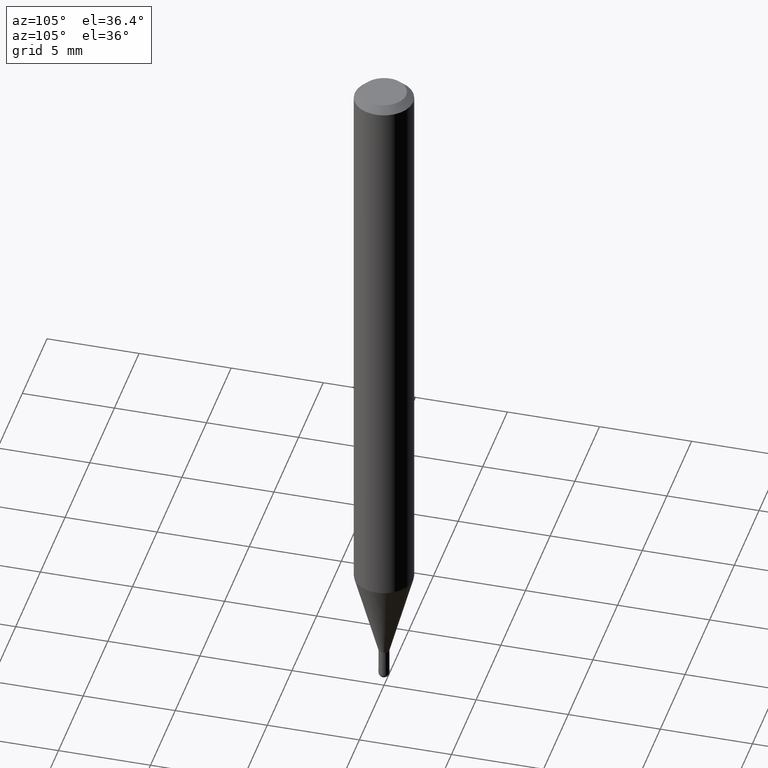
[diagram: clean part render]
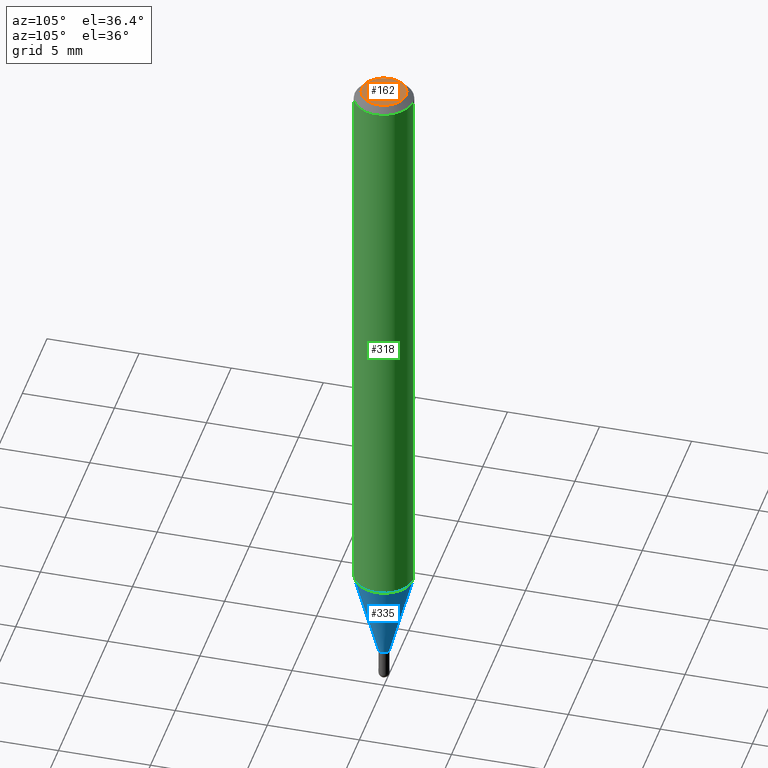
[diagram: same view with three faces highlighted in distinct colors, each labeled with its STEP entity id]
A machine part, auxiliary view with three faces highlighted in distinct colors.
Their STEP definitions:

[orange] entity #162 — the highlighted planar face has unit normal (0, -0, -1).
#27 = PLANE ( 'NONE',  #208 ) ;
#38 = DIRECTION ( 'NONE',  ( 2.445482672155708866E-29, -3.491461481984083655E-15, -1.000000000000000000 ) ) ;
#59 = AXIS2_PLACEMENT_3D ( 'NONE', #220, #70, #219 ) ;
#68 = DIRECTION ( 'NONE',  ( 6.982962677686265922E-15, 1.000000000000000000, -3.491461481984083655E-15 ) ) ;
#70 = DIRECTION ( 'NONE',  ( -2.445482672155709146E-29, 3.491461481984083655E-15, 1.000000000000000000 ) ) ;
#93 = DIRECTION ( 'NONE',  ( -6.982962677686266711E-15, -1.000000000000000000, 3.491461481984083655E-15 ) ) ;
#94 = EDGE_LOOP ( 'NONE', ( #230, #277 ) ) ;
#115 = EDGE_CURVE ( 'NONE', #488, #448, #247, .T. ) ;
#161 = AXIS2_PLACEMENT_3D ( 'NONE', #284, #379, #93 ) ;
#162 = ADVANCED_FACE ( 'NONE', ( #463 ), #27, .F. ) ;
#208 = AXIS2_PLACEMENT_3D ( 'NONE', #424, #38, #68 ) ;
#219 = DIRECTION ( 'NONE',  ( -6.982962677686266711E-15, -1.000000000000000000, 3.491461481984083655E-15 ) ) ;
#220 = CARTESIAN_POINT ( 'NONE',  ( 2.167006461281075159E-46, -3.093875772222917516E-32, -8.861262792636534541E-18 ) ) ;
#230 = ORIENTED_EDGE ( 'NONE', *, *, #115, .T. ) ;
#245 = EDGE_CURVE ( 'NONE', #448, #488, #299, .T. ) ;
#247 = CIRCLE ( 'NONE', #161, 0.04749999999999999362 ) ;
#277 = ORIENTED_EDGE ( 'NONE', *, *, #245, .T. ) ;
#283 = CARTESIAN_POINT ( 'NONE',  ( 3.840629472727447874E-16, 0.04749999999999999362, -1.747056831868805136E-16 ) ) ;
#284 = CARTESIAN_POINT ( 'NONE',  ( 2.167006461281075159E-46, -3.093875772222917516E-32, -8.861262792636534541E-18 ) ) ;
#299 = CIRCLE ( 'NONE', #59, 0.04749999999999999362 ) ;
#379 = DIRECTION ( 'NONE',  ( -2.445482672155709146E-29, 3.491461481984083655E-15, 1.000000000000000000 ) ) ;
#417 = CARTESIAN_POINT ( 'NONE',  ( -3.773273898774340269E-16, -0.04749999999999999362, 1.569831576016074168E-16 ) ) ;
#424 = CARTESIAN_POINT ( 'NONE',  ( 3.316907271900976096E-16, 0.04749999999999999362, -1.702750517905622333E-16 ) ) ;
#448 = VERTEX_POINT ( 'NONE', #417 ) ;
#463 = FACE_OUTER_BOUND ( 'NONE', #94, .T. ) ;
#488 = VERTEX_POINT ( 'NONE', #283 ) ;

[blue] entity #335 — the highlighted conical surface has half-angle 15 deg.
#5 = CARTESIAN_POINT ( 'NONE',  ( -4.364351673553613969E-16, -0.06250000000000432987, -1.240665408813993009 ) ) ;
#12 = ORIENTED_EDGE ( 'NONE', *, *, #239, .T. ) ;
#13 = AXIS2_PLACEMENT_3D ( 'NONE', #427, #430, #390 ) ;
#20 = CARTESIAN_POINT ( 'NONE',  ( 3.034025759197599694E-29, -4.331735486904094553E-15, -1.240665408813993231 ) ) ;
#36 = CIRCLE ( 'NONE', #414, 0.06250000000000000000 ) ;
#52 = ORIENTED_EDGE ( 'NONE', *, *, #199, .F. ) ;
#78 = CONICAL_SURFACE ( 'NONE', #441, 0.01149999999999992521, 0.2617993877991575125 ) ;
#82 = DIRECTION ( 'NONE',  ( -2.445482672155709146E-29, 3.491461481984083655E-15, 1.000000000000000000 ) ) ;
#86 = EDGE_CURVE ( 'NONE', #464, #476, #36, .T. ) ;
#91 = EDGE_LOOP ( 'NONE', ( #12, #439, #380, #52 ) ) ;
#120 = EDGE_CURVE ( 'NONE', #368, #476, #329, .T. ) ;
#140 = DIRECTION ( 'NONE',  ( 1.839019923739649619E-15, 0.2588190451025318972, 0.9659258262890650926 ) ) ;
#152 = VECTOR ( 'NONE', #140, 39.37007874015748854 ) ;
#166 = DIRECTION ( 'NONE',  ( -2.445482672155709146E-29, 3.491461481984083655E-15, 1.000000000000000000 ) ) ;
#182 = LINE ( 'NONE', #185, #308 ) ;
#185 = CARTESIAN_POINT ( 'NONE',  ( -8.030407079335653737E-17, -0.01150000000000492122, -1.431000000000000050 ) ) ;
#199 = EDGE_CURVE ( 'NONE', #274, #464, #182, .T. ) ;
#222 = CIRCLE ( 'NONE', #13, 0.01149999999999992521 ) ;
#225 = CARTESIAN_POINT ( 'NONE',  ( 2.629008122312695963E-16, 0.01149999999999492921, -1.431000000000000050 ) ) ;
#226 = CARTESIAN_POINT ( 'NONE',  ( 3.499485703854820099E-29, -4.996281380719223965E-15, -1.431000000000000050 ) ) ;
#239 = EDGE_CURVE ( 'NONE', #274, #368, #222, .T. ) ;
#262 = FACE_OUTER_BOUND ( 'NONE', #91, .T. ) ;
#274 = VERTEX_POINT ( 'NONE', #505 ) ;
#308 = VECTOR ( 'NONE', #507, 39.37007874015748854 ) ;
#329 = LINE ( 'NONE', #493, #152 ) ;
#334 = CARTESIAN_POINT ( 'NONE',  ( 4.440892098500927901E-16, 0.06249999999999567013, -1.240665408813993453 ) ) ;
#335 = ADVANCED_FACE ( 'NONE', ( #262 ), #78, .T. ) ;
#367 = DIRECTION ( 'NONE',  ( -6.982962677686265922E-15, -1.000000000000000000, 4.370956789862821150E-15 ) ) ;
#368 = VERTEX_POINT ( 'NONE', #225 ) ;
#380 = ORIENTED_EDGE ( 'NONE', *, *, #86, .F. ) ;
#390 = DIRECTION ( 'NONE',  ( -6.982962677686266711E-15, -1.000000000000000000, 0.000000000000000000 ) ) ;
#394 = DIRECTION ( 'NONE',  ( -6.982962677686266711E-15, -1.000000000000000000, 0.000000000000000000 ) ) ;
#414 = AXIS2_PLACEMENT_3D ( 'NONE', #20, #166, #367 ) ;
#427 = CARTESIAN_POINT ( 'NONE',  ( 3.499485703854820099E-29, -4.996281380719223965E-15, -1.431000000000000050 ) ) ;
#430 = DIRECTION ( 'NONE',  ( -2.445482672155709146E-29, 3.491461481984083655E-15, 1.000000000000000000 ) ) ;
#439 = ORIENTED_EDGE ( 'NONE', *, *, #120, .T. ) ;
#441 = AXIS2_PLACEMENT_3D ( 'NONE', #226, #82, #394 ) ;
#464 = VERTEX_POINT ( 'NONE', #5 ) ;
#476 = VERTEX_POINT ( 'NONE', #334 ) ;
#493 = CARTESIAN_POINT ( 'NONE',  ( 8.171241461244598336E-17, 0.01149999999999492921, -1.431000000000000050 ) ) ;
#505 = CARTESIAN_POINT ( 'NONE',  ( -8.030407079335653737E-17, -0.01150000000000492122, -1.431000000000000050 ) ) ;
#507 = DIRECTION ( 'NONE',  ( -1.807323732225379049E-15, -0.2588190451025252359, 0.9659258262890670910 ) ) ;

[green] entity #318 — the highlighted cylindrical surface (edge-blend (fillet) strip) has radius 1.5875 mm, axis along (-0, 0, 1).
#5 = CARTESIAN_POINT ( 'NONE',  ( -4.364351673553613969E-16, -0.06250000000000432987, -1.240665408813993009 ) ) ;
#10 = ORIENTED_EDGE ( 'NONE', *, *, #16, .T. ) ;
#11 = DIRECTION ( 'NONE',  ( -2.445482672155709146E-29, 3.491461481984083655E-15, 1.000000000000000000 ) ) ;
#16 = EDGE_CURVE ( 'NONE', #476, #337, #298, .T. ) ;
#20 = CARTESIAN_POINT ( 'NONE',  ( 3.034025759197599694E-29, -4.331735486904094553E-15, -1.240665408813993231 ) ) ;
#22 = VERTEX_POINT ( 'NONE', #30 ) ;
#24 = ORIENTED_EDGE ( 'NONE', *, *, #86, .T. ) ;
#30 = CARTESIAN_POINT ( 'NONE',  ( -4.364351673553912750E-16, -0.06250000000000005551, -0.01499999999999979128 ) ) ;
#36 = CIRCLE ( 'NONE', #414, 0.06250000000000000000 ) ;
#37 = DIRECTION ( 'NONE',  ( -2.445482672155709146E-29, 3.491461481984083655E-15, 1.000000000000000000 ) ) ;
#86 = EDGE_CURVE ( 'NONE', #464, #476, #36, .T. ) ;
#90 = CARTESIAN_POINT ( 'NONE',  ( -4.364351673553916201E-16, -0.06250000000000000000, 2.182163426240052284E-16 ) ) ;
#95 = VECTOR ( 'NONE', #37, 39.37007874015748143 ) ;
#135 = AXIS2_PLACEMENT_3D ( 'NONE', #293, #460, #296 ) ;
#147 = VECTOR ( 'NONE', #11, 39.37007874015748143 ) ;
#160 = DIRECTION ( 'NONE',  ( -2.445482672155709146E-29, 3.491461481984083655E-15, 1.000000000000000000 ) ) ;
#163 = EDGE_LOOP ( 'NONE', ( #24, #10, #461, #501 ) ) ;
#166 = DIRECTION ( 'NONE',  ( -2.445482672155709146E-29, 3.491461481984083655E-15, 1.000000000000000000 ) ) ;
#167 = CIRCLE ( 'NONE', #135, 0.06250000000000000000 ) ;
#179 = AXIS2_PLACEMENT_3D ( 'NONE', #265, #160, #469 ) ;
#217 = CARTESIAN_POINT ( 'NONE',  ( 4.440892098500625669E-16, 0.06250000000000000000, -2.182163426240052284E-16 ) ) ;
#218 = EDGE_CURVE ( 'NONE', #22, #337, #167, .T. ) ;
#265 = CARTESIAN_POINT ( 'NONE',  ( 0.000000000000000000, 0.000000000000000000, 0.000000000000000000 ) ) ;
#293 = CARTESIAN_POINT ( 'NONE',  ( 3.668224008233565961E-31, -5.237192222976128786E-17, -0.01500000000000000812 ) ) ;
#296 = DIRECTION ( 'NONE',  ( -6.982962677686265922E-15, -1.000000000000000000, 3.483106191921935554E-15 ) ) ;
#298 = LINE ( 'NONE', #217, #95 ) ;
#305 = FACE_OUTER_BOUND ( 'NONE', #163, .T. ) ;
#318 = ADVANCED_FACE ( 'NONE', ( #305 ), #473, .T. ) ;
#334 = CARTESIAN_POINT ( 'NONE',  ( 4.440892098500927901E-16, 0.06249999999999567013, -1.240665408813993453 ) ) ;
#337 = VERTEX_POINT ( 'NONE', #359 ) ;
#359 = CARTESIAN_POINT ( 'NONE',  ( 4.440892098500930859E-16, 0.06249999999999995143, -0.01500000000000022669 ) ) ;
#367 = DIRECTION ( 'NONE',  ( -6.982962677686265922E-15, -1.000000000000000000, 4.370956789862821150E-15 ) ) ;
#382 = LINE ( 'NONE', #90, #147 ) ;
#414 = AXIS2_PLACEMENT_3D ( 'NONE', #20, #166, #367 ) ;
#429 = EDGE_CURVE ( 'NONE', #464, #22, #382, .T. ) ;
#460 = DIRECTION ( 'NONE',  ( -2.445482672155709146E-29, 3.491461481984083655E-15, 1.000000000000000000 ) ) ;
#461 = ORIENTED_EDGE ( 'NONE', *, *, #218, .F. ) ;
#464 = VERTEX_POINT ( 'NONE', #5 ) ;
#469 = DIRECTION ( 'NONE',  ( -6.982962677686265922E-15, -1.000000000000000000, 3.491461481984083655E-15 ) ) ;
#473 = CYLINDRICAL_SURFACE ( 'NONE', #179, 0.06250000000000000000 ) ;
#476 = VERTEX_POINT ( 'NONE', #334 ) ;
#501 = ORIENTED_EDGE ( 'NONE', *, *, #429, .F. ) ;